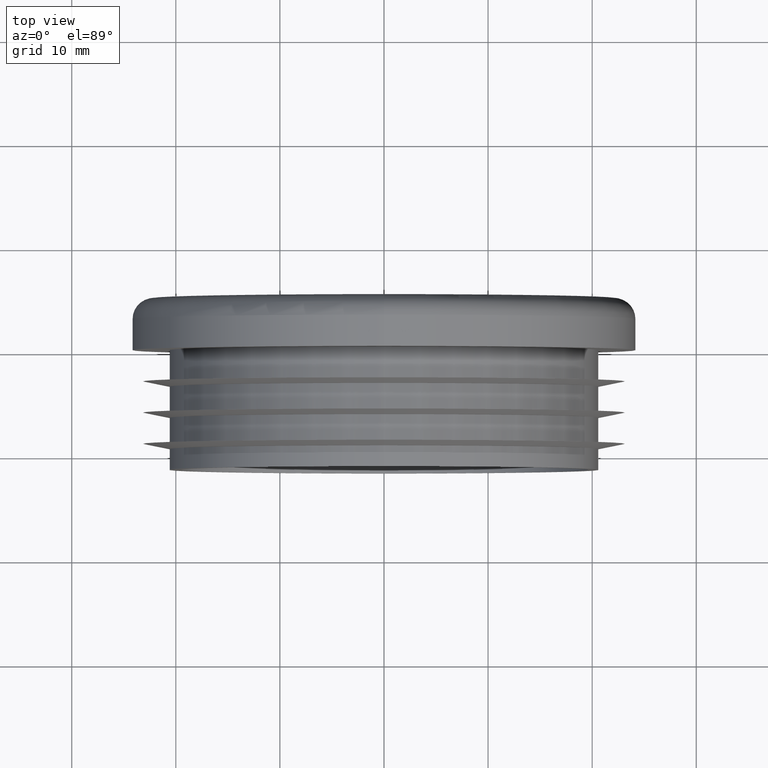
[diagram: clean part render]
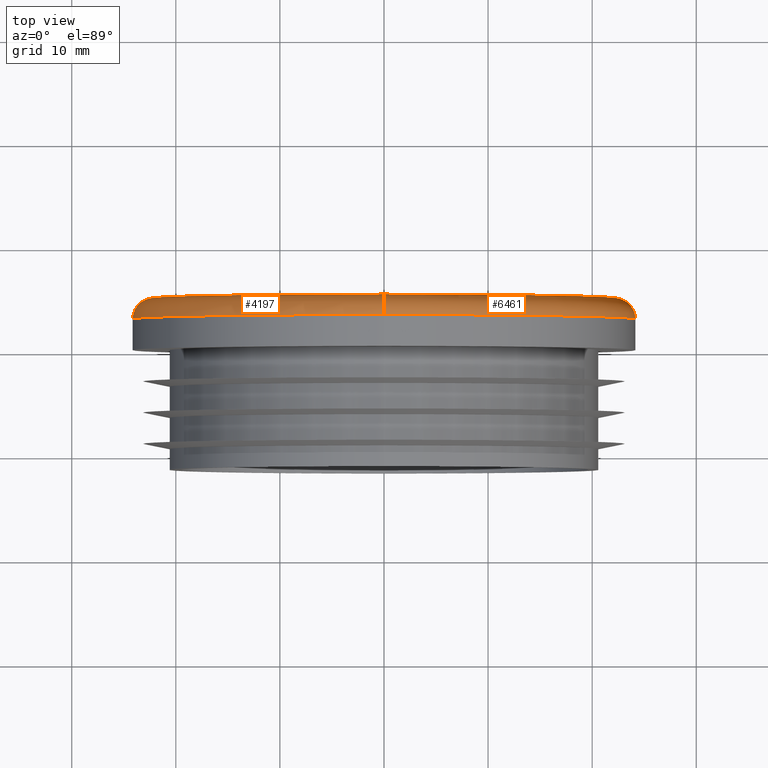
[diagram: same view with one multi-face feature highlighted, each face labeled with its STEP entity id]
A machine part, top view. The highlighted faces form ONE feature: a constant-radius fillet chain: 2 tangent blend faces with common blend radius 2 mm. The faces share edges in the B-rep.
Their STEP definitions:
[1] entity #6461 (Torus):
#350 = CARTESIAN_POINT ( 'NONE',  ( 2.957522019940857900E-015, 3.000000000000000000, 24.14999999999999900 ) ) ;
#409 = AXIS2_PLACEMENT_3D ( 'NONE', #1137, #6355, #1889 ) ;
#503 = EDGE_CURVE ( 'NONE', #7163, #6845, #5853, .T. ) ;
#564 = AXIS2_PLACEMENT_3D ( 'NONE', #7049, #4311, #5811 ) ;
#1137 = CARTESIAN_POINT ( 'NONE',  ( 0.0000000000000000000, 3.000000000000000000, 22.14999999999999500 ) ) ;
#1257 = CARTESIAN_POINT ( 'NONE',  ( 0.0000000000000000000, 5.000000000000000000, 22.14999999999999500 ) ) ;
#1306 = EDGE_CURVE ( 'NONE', #7163, #4007, #4226, .T. ) ;
#1400 = EDGE_CURVE ( 'NONE', #2614, #4007, #8004, .T. ) ;
#1747 = DIRECTION ( 'NONE',  ( 0.0000000000000000000, 0.0000000000000000000, 1.000000000000000000 ) ) ;
#1779 = DIRECTION ( 'NONE',  ( -0.0000000000000000000, -1.000000000000000000, -0.0000000000000000000 ) ) ;
#1796 = CARTESIAN_POINT ( 'NONE',  ( 0.0000000000000000000, 3.000000000000000000, 0.0000000000000000000 ) ) ;
#1889 = DIRECTION ( 'NONE',  ( 0.0000000000000000000, 0.0000000000000000000, 1.000000000000000000 ) ) ;
#2113 = ORIENTED_EDGE ( 'NONE', *, *, #6872, .F. ) ;
#2409 = ORIENTED_EDGE ( 'NONE', *, *, #1306, .T. ) ;
#2598 = ORIENTED_EDGE ( 'NONE', *, *, #1400, .F. ) ;
#2614 = VERTEX_POINT ( 'NONE', #1257 ) ;
#2640 = TOROIDAL_SURFACE ( 'NONE', #564, 22.14999999999999500, 2.000000000000000000 ) ;
#2734 = EDGE_LOOP ( 'NONE', ( #4805, #2409, #2598, #2113 ) ) ;
#4007 = VERTEX_POINT ( 'NONE', #4387 ) ;
#4226 = CIRCLE ( 'NONE', #8021, 2.000000000000001800 ) ;
#4311 = DIRECTION ( 'NONE',  ( 0.0000000000000000000, 1.000000000000000000, 0.0000000000000000000 ) ) ;
#4387 = CARTESIAN_POINT ( 'NONE',  ( 2.835057340026122400E-015, 5.000000000000000000, -22.14999999999999500 ) ) ;
#4805 = ORIENTED_EDGE ( 'NONE', *, *, #503, .F. ) ;
#5119 = DIRECTION ( 'NONE',  ( 0.0000000000000000000, 0.0000000000000000000, 1.000000000000000000 ) ) ;
#5133 = DIRECTION ( 'NONE',  ( 0.0000000000000000000, 1.000000000000000000, 0.0000000000000000000 ) ) ;
#5144 = CARTESIAN_POINT ( 'NONE',  ( 0.0000000000000000000, 5.000000000000000000, 0.0000000000000000000 ) ) ;
#5811 = DIRECTION ( 'NONE',  ( 0.0000000000000000000, 0.0000000000000000000, 1.000000000000000000 ) ) ;
#5853 = CIRCLE ( 'NONE', #7495, 24.14999999999999900 ) ;
#5902 = DIRECTION ( 'NONE',  ( 1.224646799147351500E-016, 0.0000000000000000000, -1.000000000000000000 ) ) ;
#5912 = DIRECTION ( 'NONE',  ( 1.000000000000000000, -0.0000000000000000000, 1.224646799147353200E-016 ) ) ;
#5922 = CARTESIAN_POINT ( 'NONE',  ( 2.712592660111386800E-015, 3.000000000000000000, -22.14999999999999500 ) ) ;
#6355 = DIRECTION ( 'NONE',  ( -1.000000000000000000, 0.0000000000000000000, 0.0000000000000000000 ) ) ;
#6461 = ADVANCED_FACE ( 'NONE', ( #8164 ), #2640, .T. ) ;
#6845 = VERTEX_POINT ( 'NONE', #350 ) ;
#6872 = EDGE_CURVE ( 'NONE', #6845, #2614, #7645, .T. ) ;
#7049 = CARTESIAN_POINT ( 'NONE',  ( 0.0000000000000000000, 3.000000000000000000, 0.0000000000000000000 ) ) ;
#7163 = VERTEX_POINT ( 'NONE', #7278 ) ;
#7278 = CARTESIAN_POINT ( 'NONE',  ( 0.0000000000000000000, 3.000000000000000000, -24.14999999999999900 ) ) ;
#7495 = AXIS2_PLACEMENT_3D ( 'NONE', #1796, #1779, #1747 ) ;
#7645 = CIRCLE ( 'NONE', #409, 2.000000000000001800 ) ;
#8004 = CIRCLE ( 'NONE', #9310, 22.14999999999999500 ) ;
#8021 = AXIS2_PLACEMENT_3D ( 'NONE', #5922, #5912, #5902 ) ;
#8164 = FACE_OUTER_BOUND ( 'NONE', #2734, .T. ) ;
#9310 = AXIS2_PLACEMENT_3D ( 'NONE', #5144, #5133, #5119 ) ;
[2] entity #4197 (Torus):
#74 = ORIENTED_EDGE ( 'NONE', *, *, #3467, .F. ) ;
#350 = CARTESIAN_POINT ( 'NONE',  ( 2.957522019940857900E-015, 3.000000000000000000, 24.14999999999999900 ) ) ;
#409 = AXIS2_PLACEMENT_3D ( 'NONE', #1137, #6355, #1889 ) ;
#1137 = CARTESIAN_POINT ( 'NONE',  ( 0.0000000000000000000, 3.000000000000000000, 22.14999999999999500 ) ) ;
#1197 = DIRECTION ( 'NONE',  ( 0.0000000000000000000, 1.000000000000000000, 0.0000000000000000000 ) ) ;
#1257 = CARTESIAN_POINT ( 'NONE',  ( 0.0000000000000000000, 5.000000000000000000, 22.14999999999999500 ) ) ;
#1295 = CARTESIAN_POINT ( 'NONE',  ( 0.0000000000000000000, 3.000000000000000000, 0.0000000000000000000 ) ) ;
#1306 = EDGE_CURVE ( 'NONE', #7163, #4007, #4226, .T. ) ;
#1889 = DIRECTION ( 'NONE',  ( 0.0000000000000000000, 0.0000000000000000000, 1.000000000000000000 ) ) ;
#2037 = DIRECTION ( 'NONE',  ( 0.0000000000000000000, 0.0000000000000000000, 1.000000000000000000 ) ) ;
#2614 = VERTEX_POINT ( 'NONE', #1257 ) ;
#3091 = AXIS2_PLACEMENT_3D ( 'NONE', #3961, #6843, #8861 ) ;
#3205 = AXIS2_PLACEMENT_3D ( 'NONE', #5681, #1197, #6405 ) ;
#3467 = EDGE_CURVE ( 'NONE', #6845, #7163, #5485, .T. ) ;
#3961 = CARTESIAN_POINT ( 'NONE',  ( 0.0000000000000000000, 3.000000000000000000, 0.0000000000000000000 ) ) ;
#4007 = VERTEX_POINT ( 'NONE', #4387 ) ;
#4188 = TOROIDAL_SURFACE ( 'NONE', #3091, 22.14999999999999500, 2.000000000000000000 ) ;
#4197 = ADVANCED_FACE ( 'NONE', ( #6827 ), #4188, .T. ) ;
#4226 = CIRCLE ( 'NONE', #8021, 2.000000000000001800 ) ;
#4387 = CARTESIAN_POINT ( 'NONE',  ( 2.835057340026122400E-015, 5.000000000000000000, -22.14999999999999500 ) ) ;
#4609 = ORIENTED_EDGE ( 'NONE', *, *, #6872, .T. ) ;
#4629 = ORIENTED_EDGE ( 'NONE', *, *, #8551, .F. ) ;
#4802 = CIRCLE ( 'NONE', #3205, 22.14999999999999500 ) ;
#5485 = CIRCLE ( 'NONE', #8256, 24.14999999999999900 ) ;
#5681 = CARTESIAN_POINT ( 'NONE',  ( 0.0000000000000000000, 5.000000000000000000, 0.0000000000000000000 ) ) ;
#5902 = DIRECTION ( 'NONE',  ( 1.224646799147351500E-016, 0.0000000000000000000, -1.000000000000000000 ) ) ;
#5912 = DIRECTION ( 'NONE',  ( 1.000000000000000000, -0.0000000000000000000, 1.224646799147353200E-016 ) ) ;
#5922 = CARTESIAN_POINT ( 'NONE',  ( 2.712592660111386800E-015, 3.000000000000000000, -22.14999999999999500 ) ) ;
#6355 = DIRECTION ( 'NONE',  ( -1.000000000000000000, 0.0000000000000000000, 0.0000000000000000000 ) ) ;
#6405 = DIRECTION ( 'NONE',  ( 0.0000000000000000000, 0.0000000000000000000, 1.000000000000000000 ) ) ;
#6504 = DIRECTION ( 'NONE',  ( -0.0000000000000000000, -1.000000000000000000, -0.0000000000000000000 ) ) ;
#6827 = FACE_OUTER_BOUND ( 'NONE', #7899, .T. ) ;
#6843 = DIRECTION ( 'NONE',  ( 0.0000000000000000000, 1.000000000000000000, 0.0000000000000000000 ) ) ;
#6845 = VERTEX_POINT ( 'NONE', #350 ) ;
#6872 = EDGE_CURVE ( 'NONE', #6845, #2614, #7645, .T. ) ;
#7163 = VERTEX_POINT ( 'NONE', #7278 ) ;
#7278 = CARTESIAN_POINT ( 'NONE',  ( 0.0000000000000000000, 3.000000000000000000, -24.14999999999999900 ) ) ;
#7528 = ORIENTED_EDGE ( 'NONE', *, *, #1306, .F. ) ;
#7645 = CIRCLE ( 'NONE', #409, 2.000000000000001800 ) ;
#7899 = EDGE_LOOP ( 'NONE', ( #7528, #74, #4609, #4629 ) ) ;
#8021 = AXIS2_PLACEMENT_3D ( 'NONE', #5922, #5912, #5902 ) ;
#8256 = AXIS2_PLACEMENT_3D ( 'NONE', #1295, #6504, #2037 ) ;
#8551 = EDGE_CURVE ( 'NONE', #4007, #2614, #4802, .T. ) ;
#8861 = DIRECTION ( 'NONE',  ( 0.0000000000000000000, 0.0000000000000000000, 1.000000000000000000 ) ) ;